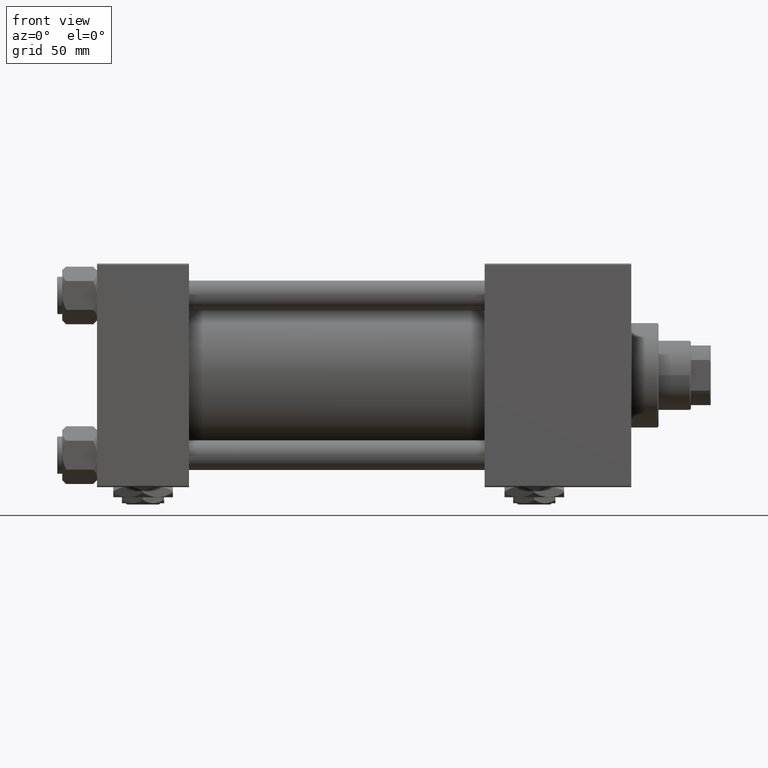
[diagram: clean part render]
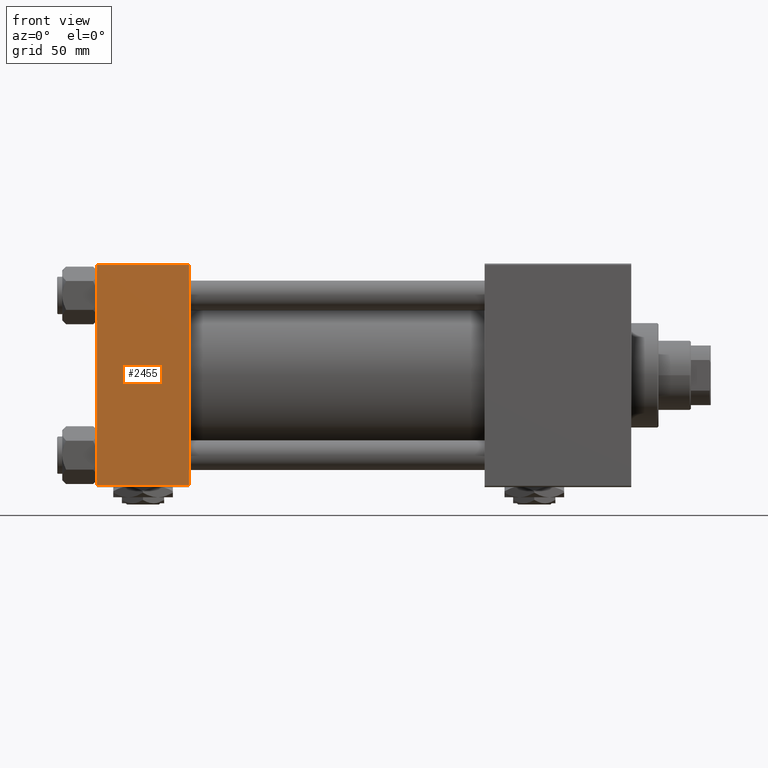
[diagram: same view with one face highlighted and labeled with its STEP entity id]
A machine part, front view. The second image highlights one B-rep face of the part: STEP entity #2455.
In plain terms, the highlighted planar face has unit normal (0, 1, 0).
Its self-contained STEP definition (entity closure, byte-faithful):
#2455 = ADVANCED_FACE ( 'NONE', ( #10423 ), #11190, .F. ) ;
#2612 = LINE ( 'NONE', #39693, #19415 ) ;
#4159 = DIRECTION ( 'NONE',  ( 1.000000000000000000, 0.000000000000000000, 0.000000000000000000 ) ) ;
#4831 = EDGE_CURVE ( 'NONE', #33126, #18955, #6157, .T. ) ;
#6157 = LINE ( 'NONE', #10386, #32772 ) ;
#7370 = DIRECTION ( 'NONE',  ( 0.000000000000000000, 7.709882115452476934E-17, -1.000000000000000000 ) ) ;
#8357 = CARTESIAN_POINT ( 'NONE',  ( 0.000000000000000000, -45.00000000000000000, -44.49999999999995737 ) ) ;
#10386 = CARTESIAN_POINT ( 'NONE',  ( 37.00000000000000000, -45.00000000000000711, 45.00000000000000000 ) ) ;
#10423 = FACE_OUTER_BOUND ( 'NONE', #23287, .T. ) ;
#10496 = CARTESIAN_POINT ( 'NONE',  ( 37.00000000000000000, -45.00000000000000711, 44.49999999999997158 ) ) ;
#11190 = PLANE ( 'NONE',  #52201 ) ;
#13140 = CARTESIAN_POINT ( 'NONE',  ( 37.00000000000000000, -45.00000000000000000, -44.49999999999998579 ) ) ;
#13819 = DIRECTION ( 'NONE',  ( 0.000000000000000000, 7.709882115452476934E-17, -1.000000000000000000 ) ) ;
#16438 = LINE ( 'NONE', #37391, #49838 ) ;
#17798 = VECTOR ( 'NONE', #4159, 1000.000000000000000 ) ;
#17955 = ORIENTED_EDGE ( 'NONE', *, *, #45725, .T. ) ;
#18887 = CARTESIAN_POINT ( 'NONE',  ( 37.00000000000000000, -45.00000000000000711, 45.00000000000000000 ) ) ;
#18955 = VERTEX_POINT ( 'NONE', #20454 ) ;
#19415 = VECTOR ( 'NONE', #7370, 1000.000000000000000 ) ;
#19439 = ORIENTED_EDGE ( 'NONE', *, *, #32894, .T. ) ;
#20164 = DIRECTION ( 'NONE',  ( -1.000000000000000000, 0.000000000000000000, 0.000000000000000000 ) ) ;
#20454 = CARTESIAN_POINT ( 'NONE',  ( 37.00000000000000000, -45.00000000000000000, -44.49999999999995737 ) ) ;
#23122 = DIRECTION ( 'NONE',  ( 0.000000000000000000, -7.709882115452478166E-17, 1.000000000000000000 ) ) ;
#23287 = EDGE_LOOP ( 'NONE', ( #19439, #17955, #27217, #24701 ) ) ;
#24701 = ORIENTED_EDGE ( 'NONE', *, *, #29453, .T. ) ;
#27217 = ORIENTED_EDGE ( 'NONE', *, *, #4831, .F. ) ;
#29453 = EDGE_CURVE ( 'NONE', #33126, #37991, #16438, .T. ) ;
#30978 = VERTEX_POINT ( 'NONE', #8357 ) ;
#32770 = LINE ( 'NONE', #13140, #17798 ) ;
#32772 = VECTOR ( 'NONE', #13819, 1000.000000000000000 ) ;
#32894 = EDGE_CURVE ( 'NONE', #37991, #30978, #2612, .T. ) ;
#33126 = VERTEX_POINT ( 'NONE', #10496 ) ;
#35537 = CARTESIAN_POINT ( 'NONE',  ( 0.000000000000000000, -45.00000000000000711, 44.49999999999997158 ) ) ;
#37391 = CARTESIAN_POINT ( 'NONE',  ( 37.00000000000000000, -45.00000000000000711, 44.49999999999997158 ) ) ;
#37991 = VERTEX_POINT ( 'NONE', #35537 ) ;
#39693 = CARTESIAN_POINT ( 'NONE',  ( 0.000000000000000000, -45.00000000000000711, 45.00000000000000000 ) ) ;
#43302 = DIRECTION ( 'NONE',  ( -0.000000000000000000, 1.000000000000000000, 7.709882115452478166E-17 ) ) ;
#45725 = EDGE_CURVE ( 'NONE', #30978, #18955, #32770, .T. ) ;
#49838 = VECTOR ( 'NONE', #20164, 1000.000000000000000 ) ;
#52201 = AXIS2_PLACEMENT_3D ( 'NONE', #18887, #43302, #23122 ) ;